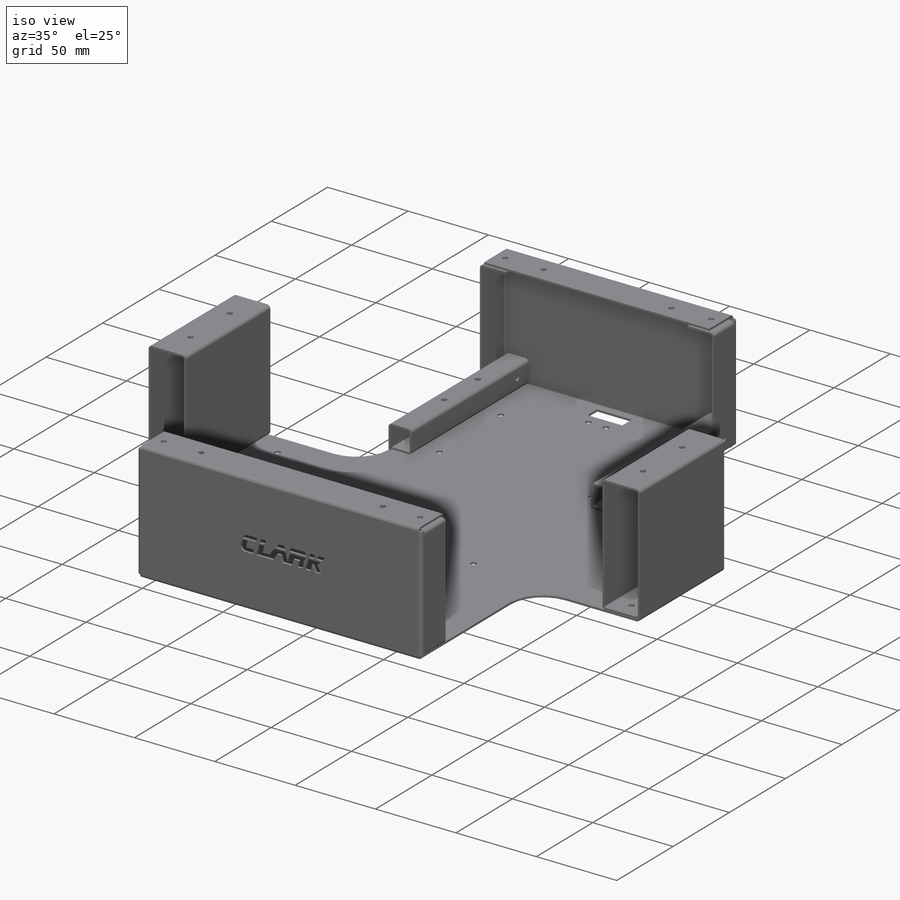
[diagram: iso view]
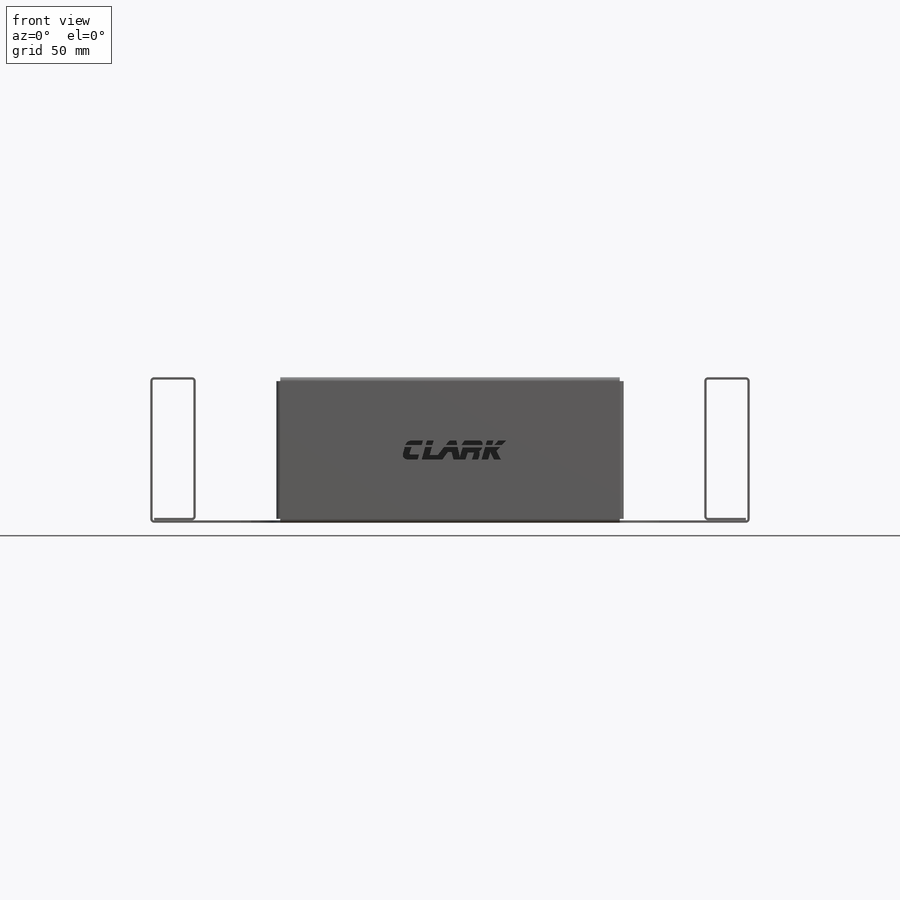
[diagram: front view]
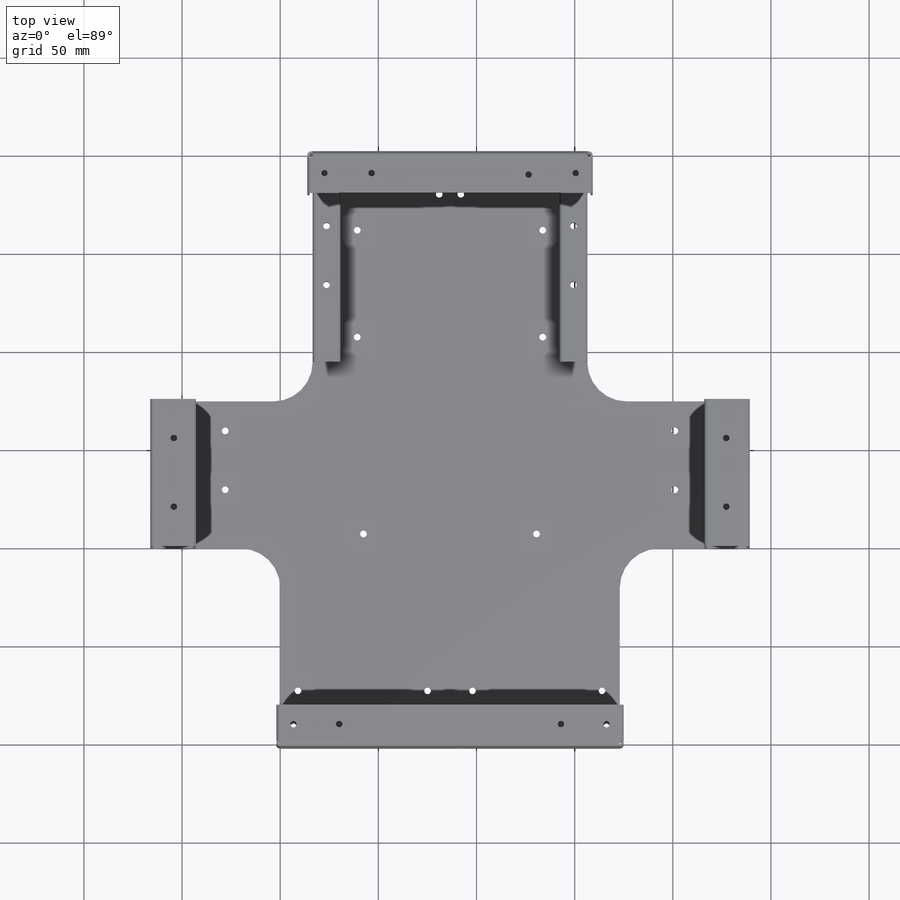
[diagram: top view]
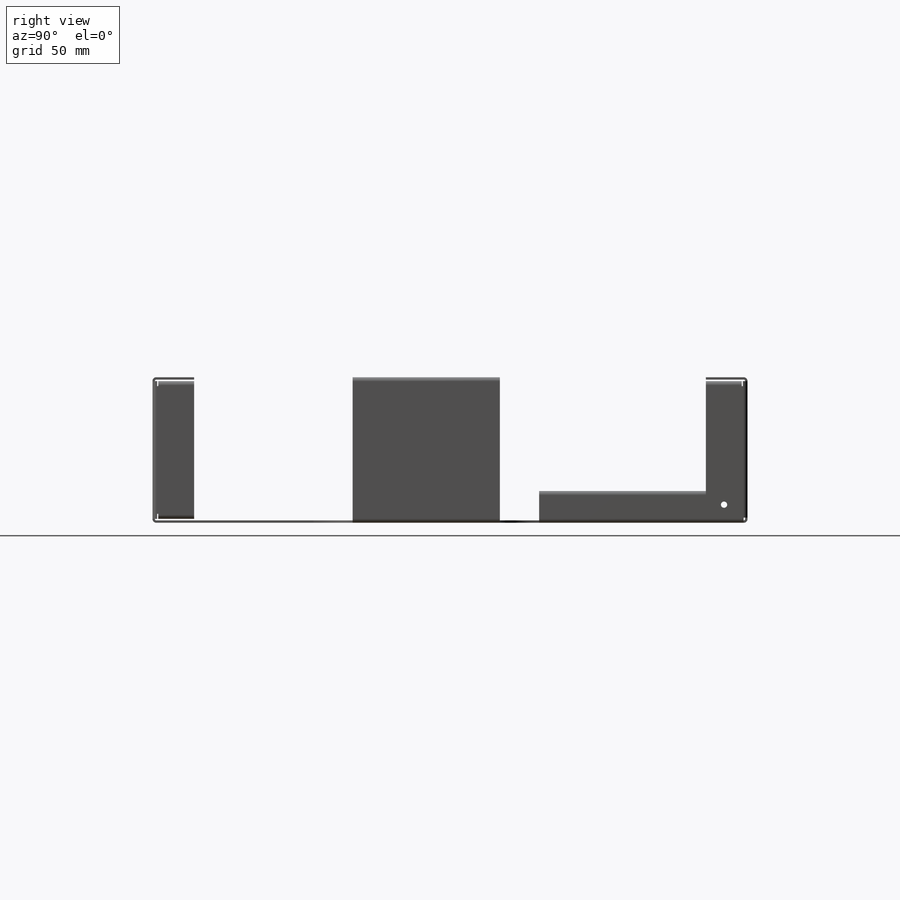
[diagram: right view]
SOLIDWORKS PART (.sldprt)
format: sldprt  version: not decoded by parser v0  size: 4,408,832 bytes
history: native  units: mm
features: sketch x204, cut_extrude x73, sheet_metal_op x61, fillet x31, mirror x15, hole x12, material x1, plane x1 + 854 further entries (+12 scaffold rows collapsed; 60 parser-record rows omitted)
feature tree (1324):
  scaffold x12  (default folders/planes/origin — collapsed)
  material  "Plain Carbon Steel"
  sketch  "Sketch1"  dims[c1.D1=~84.130859mm c1.D2=~59.610307mm c2.D1=300.0mm c2.D2=173.0mm c2.D3=0.0mm c2.D4=65.0mm c2.D5=125.0mm c2.D6=0.0mm c2.D7=125.0mm c2.D8=65.0mm c2.D9=~114.531586mm c3.D3=100.0mm c3.D6=100.0mm c3.D9=140.0mm c3.D1=300.0mm c4.D1=0.762mm c4.D2=0.389 c4.D3=1.1938mm c4.D6=500.0mm]
  sheet_metal_op  "Base-Flange1"
  plane  "Mid Width Plane"
  hole  "M3 Clearance Hole2"  Diameter=3.4mm Depth=1.27mm
  sketch  "Sketch29"
  sketch  "Sketch28"  dims[hole-wizard template sketch: 47 standard entries collapsed; hole parameters kept: c15.Hole Depth=1.27mm c15.D3=~14.816244mm c15.Drill Angle=118.0deg]
  mirror  "Mirror3"
  fillet  "Fillet1"  Radius=20mm
  sketch  "Sketch34"  dims[c1.D1=95.0mm c1.D2=108.0mm c1.D3=52.5mm c1.D4=~138.542328mm c1.D5=~138.542328mm c2.D4=151.5mm]
  sketch  "Sketch35"  dims[c1.D1=122.0mm c1.D2=13.0mm c1.D3=0.0mm c1.D4=13.0mm c2.D4=~83.917663deg c3.D4=7.0mm]
  sketch  "Sketch46"  dims[c1.D1=0.762mm c1.D4=90.0deg c1.D5=1.0 c1.D8=0.605mm c1.D9=0.605mm c2.D1=0.762mm c2.D2=500.0mm c2.D3=0.0mm c2.D6=10.0mm c2.D7=71.0mm]
  sketch  "Sketch49"
  fillet  "EdgeBend2"  Radius=0.762mm
  mirror  "Side Wall Mirror"
  fillet  "MirrorBend1"  Radius=0.762mm
  sketch  "Sketch52"
  fillet  "EdgeBend3"  Radius=0.762mm
  cut_extrude  "H-Bridge Hole"  Depth=10mm
  sketch  "Sketch55"
  fillet  "EdgeBend4"  Radius=0.762mm
  hole  "M3 Clearance Hole4"  Diameter=3.4mm Depth=1.27mm
  sketch  "Sketch59"  dims[D1=108.0mm D2=7.0mm]
  sketch  "Sketch58"  dims[hole-wizard template sketch: 47 standard entries collapsed; hole parameters kept: c15.Hole Depth=1.27mm c15.D3=~14.816244mm c15.Drill Angle=118.0deg]
  sketch  "Sketch61"  dims[D1=4.0mm]
  cut_extrude  "Cut-Extrude2"  Depth=10mm
  mirror  "Mirror5"
  sketch  "Sketch62"  dims[D1=60.0mm D2=8.5mm D3=21.5mm D4=0.0mm D5=3.5mm]
  cut_extrude  "QRD Clearance"  Depth=10mm
  sketch  "Steering Box Allocation"  dims[c1.D1=150.0mm c1.D2=35.25mm c1.D3=70.0mm c1.D4=7.0mm c1.D5=39.75mm c2.D2=0.0mm]
  hole  "QRD Holes"  Diameter=3.4mm Depth=1.27mm
  sketch  "Sketch75"
  sketch  "Sketch74"  dims[hole-wizard template sketch: 47 standard entries collapsed; hole parameters kept: c15.Hole Depth=1.27mm c15.D3=~14.816244mm c15.Drill Angle=118.0deg]
  sketch  "Sketch80"
  fillet  "EdgeBend5"  Radius=0.762mm
  hole  "Tap Drill for M4x0.7 Tap3"  Diameter=3.3mm Depth=1.209mm
  sketch  "Sketch82"  dims[D1=20.0mm D2=20.0mm D3=10.0mm D4=10.0mm]
  sketch  "Sketch81"  dims[hole-wizard template sketch: 47 standard entries collapsed; hole parameters kept: c15.Hole Depth=1.209mm c15.D3=~14.816244mm c15.Drill Angle=118.0deg]
  mirror  "Mirror6"
  fillet  "MirrorBend2"  Radius=0.762mm
  sketch  "Sketch85"
  fillet  "EdgeBend6"  Radius=0.762mm
  sketch  "Sketch90"
  fillet  "EdgeBend7"  Radius=0.762mm
  sketch  "Sketch93"
  fillet  "EdgeBend10"  Radius=0.762mm
  mirror  "Mirror7"
  fillet  "MirrorBend3"  Radius=0.762mm
  fillet  "MirrorBend4"  Radius=0.762mm
  sketch  "Sketch104"
  fillet  "EdgeBend11"  Radius=0.762mm
  hole  "Tap Drill for M4x0.7 Tap1"  Diameter=3.3mm Depth=1.209mm
  sketch  "Sketch108"  dims[c1.D1=30.0mm c1.D2=30.0mm c1.D3=~30.000072mm c2.D2=10.0mm c2.D3=10.0mm]
  sketch  "Sketch107"  dims[hole-wizard template sketch: 47 standard entries collapsed; hole parameters kept: c15.Hole Depth=1.209mm c15.D3=~14.816244mm c15.Drill Angle=118.0deg]
  hole  "Tap Drill for M4x0.7 Tap2"  Diameter=3.3mm Depth=1.209mm
  sketch  "Sketch110"  dims[D1=30.0mm D2=30.0mm D3=10.0mm D4=10.0mm]
  sketch  "Sketch109"  dims[hole-wizard template sketch: 47 standard entries collapsed; hole parameters kept: c15.Hole Depth=1.209mm c15.D3=~14.816244mm c15.Drill Angle=118.0deg]
  sketch  "Sketch111"  dims[D1=0.0mm D2=0.0mm D3=0.0mm D4=25.0mm D5=10.0mm D6=75.0mm D7=10.0mm D8=10.0mm D9=10.0mm D10=10.0mm D11=60.0mm]
  cut_extrude  "Cut-Extrude5"  Depth=10mm
  sketch  "Sketch112"  dims[c1.D4=5.0mm c1.D1=0.0mm c1.D2=10.0mm c1.D3=25.0mm c2.D4=60.0mm c2.D3=15.0mm]
  cut_extrude  "Cut-Extrude6"  Depth=10mm
  sketch  "Sketch113"  dims[c1.D4=4.0mm c1.D1=0.0mm c1.D2=20.0mm c1.D3=10.0mm c2.D4=120.0mm]
  cut_extrude  "Cut-Extrude7"  Depth=10mm
  sketch  "Sketch114"  dims[c1.D1=4.0mm c1.D2=10.0mm c1.D3=10.0mm c1.D4=4.0mm c2.D1=4.0mm c2.D4=55.0mm]
  sketch  "Sketch115"  dims[D1=4.0mm D2=14.0mm D3=10.0mm D4=10.0mm]
  cut_extrude  "Cut-Extrude8"  Depth=10mm
  cut_extrude  "Cut-Extrude9"  Depth=10mm
  sketch  "Sketch116"  dims[c1.D1=12.0mm c1.D2=54.0mm c1.D3=6.8mm c1.D4=6.8mm c1.D5=3.0mm c1.D6=4.0mm c1.D7=4.0mm c2.D1=19.0mm c2.D8=~0.133404mm c2.D9=~21.343404mm c2.D2=~21.343404mm c3.D1=25.0mm c3.D2=22.0mm]
  cut_extrude  "Cut-Extrude10"  Depth=10mm
  mirror  "Mirror9"
  sketch  "Sketch73"  dims[D1=50.0mm]
  hole  "M3 Clearance Hole9"  Diameter=3.4mm Depth=2.51mm
  sketch  "Sketch120"  dims[D1=10.0mm D2=10.0mm D3=10.0mm D4=10.0mm]
  sketch  "Sketch119"  dims[hole-wizard template sketch: 60 standard entries collapsed; hole parameters kept: c18.Thru Hole Depth=2.51mm]
  mirror  "Mirror10"
  sketch  "Sketch123"
  fillet  "EdgeBend12"  Radius=0.762mm
  sketch  "Sketch126"
  fillet  "EdgeBend13"  Radius=0.762mm
  sketch  "Sketch129"
  fillet  "EdgeBend14"  Radius=0.762mm
  sketch  "Sketch177"
  fillet  "EdgeBend25"  Radius=0.762mm
  hole  "M3 (V Bracket)"  Diameter=3.4mm Depth=28.71mm
  sketch  "Sketch131"  dims[D1=30.0mm D2=15.0mm D3=9.0mm D4=9.0mm]
  sketch  "Sketch130"  dims[hole-wizard template sketch: 60 standard entries collapsed; hole parameters kept: c18.Thru Hole Depth=28.71mm]
  mirror  "Copy of Front Wheel Support"
  fillet  "MirrorBend5"  Radius=0.762mm
  fillet  "MirrorBend6"  Radius=0.762mm
  fillet  "MirrorBend7"  Radius=0.762mm
  fillet  "MirrorBend19"  Radius=0.762mm
  mirror  "Copy of M3 (V Bracket)"
  hole  "M3 (Steering Box)"  Diameter=3.4mm Depth=3mm
  sketch  "Sketch133"
  sketch  "Sketch132"  dims[hole-wizard template sketch: 47 standard entries collapsed; hole parameters kept: c15.Hole Depth=3.0mm c15.D3=~14.816244mm c15.Drill Angle=118.0deg]
  hole  "M3 Clearance Hole10"  Diameter=3.4mm Depth=16.21mm
  sketch  "Sketch134"
  sketch  "Sketch135"  dims[Thru Hole Dia.=3.4mm Thru Hole Depth=16.21mm]
  hole  "M3 Clearance Hole11"  Diameter=3.4mm Depth=16.21mm
  sketch  "Sketch136"
  sketch  "Sketch137"  dims[Thru Hole Dia.=3.4mm Thru Hole Depth=16.21mm]
  sketch  "Sketch138"  dims[D1=54.0mm D2=95.0mm]
  sketch  "Sketch139"  dims[D1=54.0mm D2=95.0mm]
  sketch  "Sketch142"
  fillet  "EdgeBend15"  Radius=0.762mm
  sketch  "Sketch153"  dims[D1=15.0mm D2=1.0mm]
  fillet  "EdgeBend18"  Radius=0.762mm
  sketch  "Sketch156"  dims[D1=15.0mm D2=1.0mm]
  fillet  "EdgeBend19"  Radius=0.762mm
  mirror  "Mirror15"
  fillet  "MirrorBend8"  Radius=0.762mm
  mirror  "Mirror16"
  fillet  "MirrorBend9"  Radius=0.762mm
  fillet  "MirrorBend10"  Radius=0.762mm
  sketch  "Sketch157"  dims[c1.D3=~3.561498mm c1.D1=7.5mm c1.D2=~7.747606mm c2.D2=90.0deg c3.D2=10.0mm c3.D1=10.0mm c4.D2=7.5mm]
  cut_extrude  "Cut-Extrude12"  Depth=10mm
  sketch  "Sketch158"  dims[c1.D3=~2.848931mm c1.D1=7.5mm c1.D2=10.0mm c2.D1=10.0mm c2.D2=7.5mm]
  cut_extrude  "Cut-Extrude13"  Depth=10mm
  mirror  "Mirror17"
  sketch  "Sketch164"
  fillet  "EdgeBend23"  Radius=0.762mm
  sketch  "Sketch171"  dims[D1=15.0mm D2=1.0mm]
  fillet  "EdgeBend24"  Radius=0.762mm
  sketch  "Sketch172"  dims[c1.D3=~4.380345mm c1.D1=7.5mm c1.D2=~14.134178mm c2.D2=90.0deg c3.D2=10.0mm c3.D1=10.0mm c4.D2=7.5mm]
  cut_extrude  "Cut-Extrude15"  Depth=10mm
  sketch  "Sketch174"
  mirror  "Front Wall Side Mirror"
  fillet  "MirrorBend16"  Radius=0.762mm
  sketch  "Sketch178"
  sketch  "Sketch179"  dims[D3=~6.444361mm D1=5.0mm D2=10.0mm]
  cut_extrude  "Front Wall Rivet Hole"  [1 undecoded]
  mirror  "Front Wall Rivet Hole Mirror"
  fillet  "MirrorBend18"  Radius=0.762mm
  hole  "H-Bridge M3 Clearance"  Diameter=3.4mm Depth=2.51mm
  sketch  "Sketch194"  dims[D1=15.0mm D2=30.0mm D3=30.0mm]
  sketch  "Sketch193"  dims[hole-wizard template sketch: 47 standard entries collapsed; hole parameters kept: c15.Hole Depth=2.51mm c15.D3=~14.816244mm c15.Drill Angle=118.0deg]
  mirror  "H-Bridge M3 Mirror"
  sketch  "Sketch195"  dims[D1=62.0mm D2=5.0mm]
  cut_extrude  "Cut-Extrude16"  [1 undecoded]
  sketch  "Bend-Lines1"
  sketch  "Bounding-Box1"
  sheet_metal_op  "Sheet-Metal(1)"
  "Flat-Pattern(1)"
  sketch  "Bend-Lines2"
  sketch  "Bounding-Box2"
  parser-record x60  (decoder bookkeeping rows leaked as tree rows — omitted from the tree; the rows remain in map.json)
  cut_extrude  "Sheet-Metal(23)"  Depth=0.762mm
  sheet_metal_op  "Flat-Pattern(1)"
  sketch  "Bend-Lines2"
  sketch  "Bounding-Box2"
  cut_extrude  "Sheet-Metal(24)"  Depth=0.762mm
  sheet_metal_op  "Flat-Pattern(1)"
  sketch  "Bend-Lines2"
  sketch  "Bounding-Box2"
  cut_extrude  "Sheet-Metal(26)"  Depth=0.762mm
  sheet_metal_op  "Flat-Pattern(1)"
  sketch  "Bend-Lines2"
  sketch  "Bounding-Box2"
  cut_extrude  "Sheet-Metal(27)"  Depth=0.762mm
  sheet_metal_op  "Flat-Pattern(1)"
  sketch  "Bend-Lines2"
  sketch  "Bounding-Box2"
  "Flatten-<EdgeBend1>1"
  "Flatten-<EdgeBend2>1"
  cut_extrude  "Sheet-Metal(28)"  Depth=0.762mm
  sheet_metal_op  "Flat-Pattern(1)"
  sketch  "Bend-Lines2"
  sketch  "Bounding-Box2"
  "Flatten-<EdgeBend1>1"
  "Flatten-<EdgeBend2>1"
  "Flatten-<MirrorBend1>1"
  cut_extrude  "Sheet-Metal(29)"  Depth=0.762mm
  sheet_metal_op  "Flat-Pattern(1)"
  sketch  "Bend-Lines2"
  sketch  "Bounding-Box2"
  "Flatten-<EdgeBend1>1"
  "Flatten-<EdgeBend2>1"
  "Flatten-<MirrorBend1>1"
  "Flatten-<EdgeBend3>1"
  cut_extrude  "Sheet-Metal(30)"  Depth=0.762mm
  sheet_metal_op  "Flat-Pattern(1)"
  sketch  "Bend-Lines2"
  sketch  "Bounding-Box2"
  "Flatten-<EdgeBend1>1"
  "Flatten-<EdgeBend2>1"
  "Flatten-<MirrorBend1>1"
  "Flatten-<EdgeBend3>1"
  cut_extrude  "Sheet-Metal(31)"  Depth=0.762mm
  sheet_metal_op  "Flat-Pattern(1)"
  sketch  "Bend-Lines2"
  sketch  "Bounding-Box2"
  "Flatten-<EdgeBend1>1"
  "Flatten-<EdgeBend2>1"
  "Flatten-<MirrorBend1>1"
  "Flatten-<EdgeBend3>1"
  "Flatten-<EdgeBend4>1"
  cut_extrude  "Sheet-Metal(33)"  Depth=0.762mm
  sheet_metal_op  "Flat-Pattern(1)"
  sketch  "Bend-Lines2"
  sketch  "Bounding-Box2"
  "Flatten-<EdgeBend1>1"
  "Flatten-<EdgeBend2>1"
  "Flatten-<MirrorBend1>1"
  "Flatten-<EdgeBend3>1"
  "Flatten-<EdgeBend4>1"
  cut_extrude  "Sheet-Metal(34)"  Depth=0.762mm
  sheet_metal_op  "Flat-Pattern(1)"
  sketch  "Bend-Lines2"
  sketch  "Bounding-Box2"
  "Flatten-<EdgeBend1>1"
  "Flatten-<EdgeBend2>1"
  "Flatten-<MirrorBend1>1"
  "Flatten-<EdgeBend3>1"
  "Flatten-<EdgeBend4>1"
  cut_extrude  "Sheet-Metal(35)"  Depth=0.762mm
  sheet_metal_op  "Flat-Pattern(1)"
  sketch  "Bend-Lines2"
  sketch  "Bounding-Box2"
  "Flatten-<EdgeBend1>1"
  "Flatten-<EdgeBend2>1"
  "Flatten-<MirrorBend1>1"
  "Flatten-<EdgeBend3>1"
  "Flatten-<EdgeBend4>1"
  cut_extrude  "Sheet-Metal(36)"  Depth=0.762mm
  sheet_metal_op  "Flat-Pattern(1)"
  sketch  "Bend-Lines2"
  sketch  "Bounding-Box2"
  "Flatten-<EdgeBend1>1"
  "Flatten-<EdgeBend2>1"
  "Flatten-<MirrorBend1>1"
  "Flatten-<EdgeBend3>1"
  cut_extrude  "Sheet-Metal(39)"  Depth=0.762mm
  sheet_metal_op  "Flat-Pattern(1)"
  sketch  "Bend-Lines2"
  sketch  "Bounding-Box2"
  "Flatten-<EdgeBend1>1"
  "Flatten-<EdgeBend2>1"
  "Flatten-<MirrorBend1>1"
  "Flatten-<EdgeBend3>1"
  cut_extrude  "Sheet-Metal(40)"  Depth=0.762mm
  sheet_metal_op  "Flat-Pattern(1)"
  sketch  "Bend-Lines2"
  sketch  "Bounding-Box2"
  "Flatten-<EdgeBend1>1"
  "Flatten-<EdgeBend2>1"
  "Flatten-<MirrorBend1>1"
  "Flatten-<EdgeBend3>1"
  "Flatten-<EdgeBend5>1"
  cut_extrude  "Sheet-Metal(41)"  Depth=0.762mm
  sheet_metal_op  "Flat-Pattern(1)"
  sketch  "Bend-Lines2"
  sketch  "Bounding-Box2"
  "Flatten-<EdgeBend1>1"
  "Flatten-<EdgeBend2>1"
  "Flatten-<MirrorBend1>1"
  "Flatten-<EdgeBend3>1"
  "Flatten-<EdgeBend5>1"
  cut_extrude  "Sheet-Metal(42)"  Depth=0.762mm
  sheet_metal_op  "Flat-Pattern(1)"
  sketch  "Bend-Lines2"
  sketch  "Bounding-Box2"
  "Flatten-<EdgeBend1>1"
  "Flatten-<EdgeBend2>1"
  "Flatten-<MirrorBend1>1"
  "Flatten-<EdgeBend3>1"
  "Flatten-<EdgeBend5>1"
  "Flatten-<MirrorBend2>1"
  cut_extrude  "Sheet-Metal(43)"  Depth=0.762mm
  sheet_metal_op  "Flat-Pattern(1)"
  sketch  "Bend-Lines2"
  sketch  "Bounding-Box2"
  "Flatten-<EdgeBend1>1"
  "Flatten-<EdgeBend2>1"
  "Flatten-<MirrorBend1>1"
  "Flatten-<EdgeBend3>1"
  "Flatten-<EdgeBend6>1"
  "Flatten-<EdgeBend5>1"
  "Flatten-<MirrorBend2>1"
  cut_extrude  "Sheet-Metal(44)"  Depth=0.762mm
  sheet_metal_op  "Flat-Pattern(1)"
  sketch  "Bend-Lines2"
  sketch  "Bounding-Box2"
  "Flatten-<EdgeBend1>1"
  "Flatten-<EdgeBend2>1"
  "Flatten-<MirrorBend1>1"
  "Flatten-<EdgeBend3>1"
  "Flatten-<EdgeBend5>1"
  "Flatten-<MirrorBend2>1"
  "Flatten-<EdgeBend6>1"
  "Flatten-<EdgeBend7>1"
  cut_extrude  "Sheet-Metal(45)"  Depth=0.762mm
  sheet_metal_op  "Flat-Pattern(1)"
  sketch  "Bend-Lines2"
  sketch  "Bounding-Box2"
  "Flatten-<EdgeBend1>1"
  "Flatten-<EdgeBend2>1"
  "Flatten-<MirrorBend1>1"
  "Flatten-<EdgeBend3>1"
  "Flatten-<EdgeBend5>1"
  "Flatten-<MirrorBend2>1"
  "Flatten-<EdgeBend6>1"
  "Flatten-<EdgeBend7>1"
  "Flatten-<EdgeBend10>1"
  cut_extrude  "Sheet-Metal(47)"  Depth=0.762mm
  sheet_metal_op  "Flat-Pattern(1)"
  sketch  "Bend-Lines2"
  sketch  "Bounding-Box2"
  "Flatten-<EdgeBend1>1"
  "Flatten-<EdgeBend2>1"
  "Flatten-<MirrorBend1>1"
  "Flatten-<EdgeBend3>1"
  "Flatten-<EdgeBend5>1"
  "Flatten-<MirrorBend2>1"
  "Flatten-<EdgeBend6>1"
  "Flatten-<EdgeBend7>1"
  "Flatten-<EdgeBend10>2"
  "Flatten-<MirrorBend3>1"
  "Flatten-<MirrorBend4>1"
  cut_extrude  "Sheet-Metal(51)"  Depth=0.762mm
  sheet_metal_op  "Flat-Pattern(1)"
  sketch  "Bend-Lines2"
  sketch  "Bounding-Box2"
  "Flatten-<EdgeBend1>1"
  "Flatten-<EdgeBend2>1"
  "Flatten-<MirrorBend1>1"
  "Flatten-<EdgeBend3>1"
  "Flatten-<EdgeBend6>1"
  "Flatten-<EdgeBend11>1"
  "Flatten-<EdgeBend5>1"
  "Flatten-<MirrorBend2>1"
  "Flatten-<EdgeBend7>1"
  "Flatten-<EdgeBend10>2"
  "Flatten-<MirrorBend3>1"
  "Flatten-<MirrorBend4>1"
  cut_extrude  "Sheet-Metal(52)"  Depth=0.762mm
  sheet_metal_op  "Flat-Pattern(1)"
  sketch  "Bend-Lines2"
  sketch  "Bounding-Box2"
  "Flatten-<EdgeBend1>1"
  "Flatten-<EdgeBend2>1"
  "Flatten-<MirrorBend1>1"
  "Flatten-<EdgeBend3>1"
  "Flatten-<EdgeBend6>1"
  "Flatten-<EdgeBend11>1"
  "Flatten-<EdgeBend5>1"
  "Flatten-<MirrorBend2>1"
  "Flatten-<EdgeBend7>1"
  "Flatten-<EdgeBend10>2"
  "Flatten-<MirrorBend3>1"
  "Flatten-<MirrorBend4>1"
  cut_extrude  "Sheet-Metal(53)"  Depth=0.762mm
  sheet_metal_op  "Flat-Pattern(1)"
  sketch  "Bend-Lines2"
  sketch  "Bounding-Box2"
  "Flatten-<EdgeBend1>1"
  "Flatten-<EdgeBend2>1"
  "Flatten-<MirrorBend1>1"
  "Flatten-<EdgeBend3>1"
  "Flatten-<EdgeBend6>1"
  "Flatten-<EdgeBend11>1"
  "Flatten-<EdgeBend5>1"
  "Flatten-<MirrorBend2>1"
  "Flatten-<EdgeBend7>1"
  "Flatten-<EdgeBend10>2"
  "Flatten-<MirrorBend3>1"
  "Flatten-<MirrorBend4>1"
  cut_extrude  "Sheet-Metal(55)"  Depth=0.762mm
  sheet_metal_op  "Flat-Pattern(1)"
  sketch  "Bend-Lines2"
  sketch  "Bounding-Box2"
  "Flatten-<EdgeBend1>1"
  "Flatten-<EdgeBend2>1"
  "Flatten-<MirrorBend1>1"
  "Flatten-<EdgeBend3>1"
  "Flatten-<EdgeBend4>1"
  "Flatten-<EdgeBend5>1"
  "Flatten-<MirrorBend2>1"
  "Flatten-<EdgeBend6>1"
  "Flatten-<EdgeBend7>1"
  "Flatten-<EdgeBend10>2"
  "Flatten-<EdgeBend11>1"
  cut_extrude  "Sheet-Metal(56)"  Depth=0.762mm
  sheet_metal_op  "Flat-Pattern(1)"
  sketch  "Bend-Lines2"
  sketch  "Bounding-Box2"
  "Flatten-<EdgeBend1>1"
  "Flatten-<EdgeBend2>1"
  "Flatten-<MirrorBend1>1"
  "Flatten-<EdgeBend3>1"
  "Flatten-<EdgeBend4>1"
  "Flatten-<EdgeBend5>1"
  "Flatten-<MirrorBend2>1"
  "Flatten-<EdgeBend6>1"
  "Flatten-<EdgeBend7>1"
  "Flatten-<EdgeBend10>2"
  "Flatten-<EdgeBend11>1"
  cut_extrude  "Sheet-Metal(57)"  Depth=0.762mm
  sheet_metal_op  "Flat-Pattern(1)"
  sketch  "Bend-Lines2"
  sketch  "Bounding-Box2"
  "Flatten-<EdgeBend1>1"
  "Flatten-<EdgeBend2>1"
  "Flatten-<MirrorBend1>1"
  "Flatten-<EdgeBend3>1"
  "Flatten-<EdgeBend4>1"
  "Flatten-<EdgeBend5>1"
  "Flatten-<MirrorBend2>1"
  "Flatten-<EdgeBend6>1"
  "Flatten-<EdgeBend7>1"
  "Flatten-<EdgeBend10>2"
  "Flatten-<EdgeBend11>1"
  cut_extrude  "Sheet-Metal(58)"  Depth=0.762mm
  sheet_metal_op  "Flat-Pattern(1)"
  sketch  "Bend-Lines2"
  sketch  "Bounding-Box2"
  "Flatten-<EdgeBend1>1"
  "Flatten-<EdgeBend2>1"
  "Flatten-<MirrorBend1>1"
  "Flatten-<EdgeBend3>1"
  "Flatten-<EdgeBend4>1"
  "Flatten-<EdgeBend5>1"
  "Flatten-<MirrorBend2>1"
  "Flatten-<EdgeBend6>1"
  "Flatten-<EdgeBend7>1"
  "Flatten-<EdgeBend10>2"
  "Flatten-<EdgeBend11>1"
  cut_extrude  "Sheet-Metal(59)"  Depth=0.762mm
  sheet_metal_op  "Flat-Pattern(1)"
  sketch  "Bend-Lines2"
  sketch  "Bounding-Box2"
  "Flatten-<EdgeBend1>1"
  "Flatten-<EdgeBend2>1"
  "Flatten-<MirrorBend1>1"
  "Flatten-<EdgeBend3>1"
  "Flatten-<EdgeBend4>1"
  "Flatten-<EdgeBend5>1"
  "Flatten-<MirrorBend2>1"
  "Flatten-<EdgeBend6>1"
  "Flatten-<EdgeBend7>1"
  "Flatten-<EdgeBend10>2"
  "Flatten-<EdgeBend11>1"
  cut_extrude  "Sheet-Metal(60)"  Depth=0.762mm
  sheet_metal_op  "Flat-Pattern(1)"
  sketch  "Bend-Lines2"
  sketch  "Bounding-Box2"
  "Flatten-<EdgeBend1>1"
  "Flatten-<EdgeBend2>1"
  "Flatten-<MirrorBend1>1"
  "Flatten-<EdgeBend3>1"
  "Flatten-<EdgeBend4>1"
  "Flatten-<EdgeBend5>1"
  "Flatten-<MirrorBend2>1"
  "Flatten-<EdgeBend6>1"
  "Flatten-<EdgeBend7>1"
  "Flatten-<EdgeBend10>2"
  "Flatten-<EdgeBend11>1"
  cut_extrude  "Sheet-Metal(61)"  Depth=0.762mm
  sheet_metal_op  "Flat-Pattern(1)"
  sketch  "Bend-Lines2"
  sketch  "Bounding-Box2"
  "Flatten-<EdgeBend1>1"
  "Flatten-<EdgeBend2>1"
  "Flatten-<MirrorBend1>1"
  "Flatten-<EdgeBend3>1"
  "Flatten-<EdgeBend4>1"
  "Flatten-<EdgeBend5>1"
  "Flatten-<MirrorBend2>1"
  "Flatten-<EdgeBend6>1"
  "Flatten-<EdgeBend7>1"
  "Flatten-<EdgeBend10>2"
  "Flatten-<EdgeBend11>1"
  cut_extrude  "Sheet-Metal(63)"  Depth=0.762mm
  sheet_metal_op  "Flat-Pattern(1)"
  sketch  "Bend-Lines2"
  sketch  "Bounding-Box2"
  "Flatten-<EdgeBend1>1"
  "Flatten-<EdgeBend2>1"
  "Flatten-<MirrorBend1>1"
  "Flatten-<EdgeBend3>1"
  "Flatten-<EdgeBend5>1"
  "Flatten-<MirrorBend2>1"
  "Flatten-<EdgeBend6>1"
  "Flatten-<EdgeBend7>1"
  "Flatten-<EdgeBend10>2"
  "Flatten-<EdgeBend11>1"
  "Flatten-<MirrorBend3>1"
  "Flatten-<MirrorBend4>1"
  cut_extrude  "Sheet-Metal(64)"  Depth=0.762mm
  sheet_metal_op  "Flat-Pattern(1)"
  sketch  "Bend-Lines2"
  sketch  "Bounding-Box2"
  "Flatten-<EdgeBend1>1"
  "Flatten-<EdgeBend2>1"
  "Flatten-<MirrorBend1>1"
  "Flatten-<EdgeBend3>1"
  "Flatten-<EdgeBend5>1"
  "Flatten-<MirrorBend2>1"
  "Flatten-<EdgeBend6>1"
  "Flatten-<EdgeBend7>1"
  "Flatten-<EdgeBend10>2"
  "Flatten-<EdgeBend11>1"
  "Flatten-<MirrorBend3>1"
  "Flatten-<MirrorBend4>1"
  cut_extrude  "Sheet-Metal(65)"  Depth=0.762mm
  sheet_metal_op  "Flat-Pattern(1)"
  sketch  "Bend-Lines2"
  sketch  "Bounding-Box2"
  "Flatten-<EdgeBend1>1"
  "Flatten-<EdgeBend2>1"
  "Flatten-<MirrorBend1>1"
  "Flatten-<EdgeBend3>1"
  "Flatten-<EdgeBend6>1"
  "Flatten-<EdgeBend11>1"
  "Flatten-<EdgeBend12>1"
  "Flatten-<EdgeBend10>2"
  "Flatten-<EdgeBend7>1"
  "Flatten-<MirrorBend2>1"
  "Flatten-<EdgeBend5>1"
  "Flatten-<MirrorBend3>1"
  "Flatten-<MirrorBend4>1"
  cut_extrude  "Sheet-Metal(66)"  Depth=0.762mm
  sheet_metal_op  "Flat-Pattern(1)"
  sketch  "Bend-Lines2"
  sketch  "Bounding-Box2"
  "Flatten-<EdgeBend1>1"
  "Flatten-<EdgeBend2>1"
  "Flatten-<MirrorBend1>1"
  "Flatten-<EdgeBend3>1"
  "Flatten-<EdgeBend6>1"
  "Flatten-<EdgeBend11>1"
  "Flatten-<EdgeBend12>1"
  "Flatten-<EdgeBend13>1"
  "Flatten-<EdgeBend10>2"
  "Flatten-<EdgeBend7>1"
  "Flatten-<MirrorBend2>1"
  "Flatten-<EdgeBend5>1"
  "Flatten-<MirrorBend3>1"
  "Flatten-<MirrorBend4>1"
  cut_extrude  "Sheet-Metal(67)"  Depth=0.762mm
  sheet_metal_op  "Flat-Pattern(1)"
  sketch  "Bend-Lines2"
  sketch  "Bounding-Box2"
  "Flatten-<EdgeBend1>1"
  "Flatten-<EdgeBend2>1"
  "Flatten-<MirrorBend1>1"
  "Flatten-<EdgeBend3>1"
  "Flatten-<EdgeBend6>1"
  "Flatten-<EdgeBend11>1"
  "Flatten-<EdgeBend12>1"
  "Flatten-<EdgeBend13>1"
  "Flatten-<EdgeBend14>1"
  "Flatten-<EdgeBend10>2"
  "Flatten-<EdgeBend7>1"
  "Flatten-<MirrorBend2>1"
  "Flatten-<EdgeBend5>1"
  "Flatten-<MirrorBend3>1"
  "Flatten-<MirrorBend4>1"
  cut_extrude  "Sheet-Metal(68)"  Depth=0.762mm
  sheet_metal_op  "Flat-Pattern(1)"
  sketch  "Bend-Lines2"
  sketch  "Bounding-Box2"
  "Flatten-<EdgeBend1>1"
  "Flatten-<EdgeBend2>1"
  "Flatten-<MirrorBend1>1"
  "Flatten-<EdgeBend3>1"
  "Flatten-<EdgeBend4>1"
  "Flatten-<EdgeBend5>1"
  "Flatten-<MirrorBend2>1"
  "Flatten-<EdgeBend6>1"
  "Flatten-<EdgeBend7>1"
  "Flatten-<EdgeBend10>2"
  "Flatten-<EdgeBend11>1"
  "Flatten-<EdgeBend12>1"
  "Flatten-<EdgeBend13>1"
  "Flatten-<EdgeBend14>1"
  cut_extrude  "Sheet-Metal(69)"  Depth=0.762mm
  sheet_metal_op  "Flat-Pattern(1)"
  sketch  "Bend-Lines2"
  sketch  "Bounding-Box2"
  "Flatten-<EdgeBend1>1"
  "Flatten-<EdgeBend2>1"
  "Flatten-<MirrorBend1>1"
  "Flatten-<EdgeBend3>1"
  "Flatten-<EdgeBend6>1"
  "Flatten-<EdgeBend11>1"
  "Flatten-<EdgeBend12>1"
  "Flatten-<EdgeBend13>1"
  "Flatten-<EdgeBend14>1"
  "Flatten-<MirrorBend5>1"
  "Flatten-<MirrorBend6>1"
  "Flatten-<MirrorBend7>1"
  "Flatten-<EdgeBend10>2"
  "Flatten-<EdgeBend7>1"
  "Flatten-<MirrorBend2>1"
  "Flatten-<EdgeBend5>1"
  "Flatten-<EdgeBend25>2"
  "Flatten-<MirrorBend19>1"
  "Flatten-<MirrorBend3>1"
  "Flatten-<MirrorBend4>1"
  cut_extrude  "Sheet-Metal(70)"  Depth=0.762mm
  sheet_metal_op  "Flat-Pattern(1)"
  sketch  "Bend-Lines2"
  sketch  "Bounding-Box2"
  "Flatten-<EdgeBend1>1"
  "Flatten-<EdgeBend2>1"
  "Flatten-<MirrorBend1>1"
  "Flatten-<EdgeBend3>1"
  "Flatten-<EdgeBend4>1"
  "Flatten-<EdgeBend5>1"
  "Flatten-<MirrorBend2>1"
  "Flatten-<EdgeBend6>1"
  "Flatten-<EdgeBend7>1"
  "Flatten-<EdgeBend10>2"
  "Flatten-<EdgeBend11>1"
  "Flatten-<EdgeBend12>1"
  "Flatten-<EdgeBend13>1"
  "Flatten-<EdgeBend14>1"
  "Flatten-<MirrorBend5>1"
  "Flatten-<MirrorBend6>1"
  "Flatten-<MirrorBend7>1"
  cut_extrude  "Sheet-Metal(71)"  Depth=0.762mm
  sheet_metal_op  "Flat-Pattern(1)"
  sketch  "Bend-Lines2"
  sketch  "Bounding-Box2"
  "Flatten-<EdgeBend1>1"
  "Flatten-<EdgeBend2>1"
  "Flatten-<MirrorBend1>1"
  "Flatten-<EdgeBend3>1"
  "Flatten-<EdgeBend6>1"
  "Flatten-<EdgeBend11>1"
  "Flatten-<EdgeBend12>1"
  "Flatten-<EdgeBend13>1"
  "Flatten-<EdgeBend14>1"
  "Flatten-<MirrorBend5>1"
  "Flatten-<MirrorBend6>1"
  "Flatten-<MirrorBend7>1"
  "Flatten-<EdgeBend10>2"
  "Flatten-<EdgeBend7>1"
  "Flatten-<MirrorBend2>1"
  "Flatten-<EdgeBend5>1"
  "Flatten-<EdgeBend25>3"
  "Flatten-<MirrorBend19>2"
  "Flatten-<MirrorBend3>1"
  "Flatten-<MirrorBend4>1"
  cut_extrude  "Sheet-Metal(72)"  Depth=0.762mm
  sheet_metal_op  "Flat-Pattern(1)"
  sketch  "Bend-Lines2"
  sketch  "Bounding-Box2"
  "Flatten-<EdgeBend1>1"
  "Flatten-<EdgeBend2>1"
  "Flatten-<MirrorBend1>1"
  "Flatten-<EdgeBend3>1"
  "Flatten-<EdgeBend6>1"
  "Flatten-<EdgeBend11>1"
  "Flatten-<EdgeBend12>1"
  "Flatten-<EdgeBend13>1"
  "Flatten-<EdgeBend14>1"
  "Flatten-<MirrorBend5>1"
  "Flatten-<MirrorBend6>1"
  "Flatten-<MirrorBend7>1"
  "Flatten-<EdgeBend10>2"
  "Flatten-<EdgeBend7>1"
  "Flatten-<MirrorBend2>1"
  "Flatten-<EdgeBend5>1"
  "Flatten-<EdgeBend25>4"
  "Flatten-<MirrorBend19>3"
  "Flatten-<MirrorBend3>1"
  "Flatten-<MirrorBend4>1"
  cut_extrude  "Sheet-Metal(73)"  Depth=0.762mm
  sheet_metal_op  "Flat-Pattern(1)"
  sketch  "Bend-Lines2"
  sketch  "Bounding-Box2"
  "Flatten-<EdgeBend1>1"
  "Flatten-<EdgeBend2>1"
  "Flatten-<MirrorBend1>1"
  "Flatten-<EdgeBend3>1"
  "Flatten-<EdgeBend5>1"
  "Flatten-<MirrorBend2>1"
  "Flatten-<EdgeBend6>1"
  "Flatten-<EdgeBend7>1"
  "Flatten-<EdgeBend10>2"
  "Flatten-<EdgeBend11>1"
  "Flatten-<EdgeBend12>1"
  "Flatten-<EdgeBend13>1"
  "Flatten-<EdgeBend14>1"
  "Flatten-<MirrorBend5>1"
  "Flatten-<MirrorBend6>1"
  "Flatten-<MirrorBend7>1"
  "Flatten-<EdgeBend25>5"
  "Flatten-<MirrorBend19>4"
  "Flatten-<MirrorBend3>1"
  "Flatten-<MirrorBend4>1"
  sketch  "Sketch174-1"
  sketch  "Sketch178-1"
  cut_extrude  "Sheet-Metal(74)"  Depth=0.762mm
  sheet_metal_op  "Flat-Pattern(1)"
  sketch  "Bend-Lines2"
  sketch  "Bounding-Box2"
  "Flatten-<EdgeBend1>1"
  "Flatten-<EdgeBend2>1"
  "Flatten-<MirrorBend1>1"
  "Flatten-<EdgeBend3>1"
  "Flatten-<EdgeBend6>1"
  "Flatten-<EdgeBend11>1"
  "Flatten-<EdgeBend12>1"
  "Flatten-<EdgeBend13>1"
  "Flatten-<EdgeBend14>1"
  "Flatten-<MirrorBend5>1"
  "Flatten-<MirrorBend6>1"
  "Flatten-<MirrorBend7>1"
  "Flatten-<EdgeBend15>1"
  "Flatten-<EdgeBend10>2"
  "Flatten-<EdgeBend7>1"
  "Flatten-<MirrorBend2>1"
  "Flatten-<EdgeBend5>1"
  "Flatten-<EdgeBend25>6"
  "Flatten-<MirrorBend19>5"
  "Flatten-<MirrorBend3>1"
  "Flatten-<MirrorBend4>1"
  sketch  "Sketch174-2"
  sketch  "Sketch178-2"
  cut_extrude  "Sheet-Metal(77)"  Depth=0.762mm
  sheet_metal_op  "Flat-Pattern(1)"
  sketch  "Bend-Lines2"
  sketch  "Bounding-Box2"
  "Flatten-<EdgeBend1>1"
  "Flatten-<EdgeBend2>1"
  "Flatten-<MirrorBend1>1"
  "Flatten-<EdgeBend3>1"
  "Flatten-<EdgeBend6>1"
  "Flatten-<EdgeBend11>1"
  "Flatten-<EdgeBend12>1"
  "Flatten-<EdgeBend13>1"
  "Flatten-<EdgeBend14>1"
  "Flatten-<MirrorBend5>1"
  "Flatten-<MirrorBend6>1"
  "Flatten-<MirrorBend7>1"
  "Flatten-<EdgeBend15>1"
  "Flatten-<EdgeBend18>1"
  "Flatten-<EdgeBend10>2"
  "Flatten-<EdgeBend7>1"
  "Flatten-<MirrorBend2>1"
  "Flatten-<EdgeBend5>1"
  "Flatten-<EdgeBend25>7"
  "Flatten-<MirrorBend19>6"
  "Flatten-<MirrorBend3>1"
  "Flatten-<MirrorBend4>1"
  sketch  "Sketch174-3"
  sketch  "Sketch178-3"
  cut_extrude  "Sheet-Metal(78)"  Depth=0.762mm
  sheet_metal_op  "Flat-Pattern(1)"
  sketch  "Bend-Lines2"
  sketch  "Bounding-Box2"
  "Flatten-<EdgeBend1>1"
  "Flatten-<EdgeBend2>1"
  "Flatten-<MirrorBend1>1"
  "Flatten-<EdgeBend3>1"
  "Flatten-<EdgeBend6>1"
  "Flatten-<EdgeBend11>1"
  "Flatten-<EdgeBend12>1"
  "Flatten-<EdgeBend13>1"
  "Flatten-<EdgeBend14>1"
  "Flatten-<MirrorBend5>1"
  "Flatten-<MirrorBend6>1"
  "Flatten-<MirrorBend7>1"
  "Flatten-<EdgeBend15>1"
  "Flatten-<EdgeBend18>1"
  "Flatten-<EdgeBend19>1"
  "Flatten-<EdgeBend10>2"
  "Flatten-<EdgeBend7>1"
  "Flatten-<MirrorBend2>1"
  "Flatten-<EdgeBend5>1"
  "Flatten-<EdgeBend25>8"
  "Flatten-<MirrorBend19>7"
  "Flatten-<MirrorBend3>1"
  "Flatten-<MirrorBend4>1"
  cut_extrude  "Sheet-Metal(79)"  Depth=0.762mm
  sheet_metal_op  "Flat-Pattern(1)"
  sketch  "Bend-Lines2"
  sketch  "Bounding-Box2"
  "Flatten-<EdgeBend1>1"
  "Flatten-<EdgeBend2>1"
  "Flatten-<MirrorBend1>1"
  "Flatten-<EdgeBend3>1"
  "Flatten-<EdgeBend6>1"
  "Flatten-<EdgeBend11>1"
  "Flatten-<EdgeBend12>1"
  "Flatten-<EdgeBend13>1"
  "Flatten-<EdgeBend14>1"
  "Flatten-<MirrorBend5>1"
  "Flatten-<MirrorBend6>1"
  "Flatten-<MirrorBend7>1"
  "Flatten-<EdgeBend15>1"
  "Flatten-<EdgeBend18>1"
  "Flatten-<EdgeBend19>1"
  "Flatten-<MirrorBend8>1"
  "Flatten-<EdgeBend10>2"
  "Flatten-<EdgeBend7>1"
  "Flatten-<MirrorBend2>1"
  "Flatten-<EdgeBend5>1"
  "Flatten-<EdgeBend25>9"
  "Flatten-<MirrorBend19>8"
  "Flatten-<MirrorBend3>1"
  "Flatten-<MirrorBend4>1"
  cut_extrude  "Sheet-Metal(80)"  Depth=0.762mm
  sheet_metal_op  "Flat-Pattern(1)"
  sketch  "Bend-Lines2"
  sketch  "Bounding-Box2"
  "Flatten-<EdgeBend1>1"
  "Flatten-<EdgeBend2>1"
  "Flatten-<MirrorBend1>1"
  "Flatten-<EdgeBend3>1"
  "Flatten-<EdgeBend6>1"
  "Flatten-<EdgeBend11>1"
  "Flatten-<EdgeBend12>1"
  "Flatten-<EdgeBend13>1"
  "Flatten-<EdgeBend14>1"
  "Flatten-<MirrorBend5>1"
  "Flatten-<MirrorBend6>1"
  "Flatten-<MirrorBend7>1"
  "Flatten-<EdgeBend15>1"
  "Flatten-<EdgeBend18>1"
  "Flatten-<EdgeBend19>1"
  "Flatten-<MirrorBend8>1"
  "Flatten-<MirrorBend9>1"
  "Flatten-<MirrorBend10>1"
  "Flatten-<EdgeBend10>2"
  "Flatten-<EdgeBend7>1"
  "Flatten-<MirrorBend2>1"
  "Flatten-<EdgeBend5>1"
  "Flatten-<EdgeBend25>10"
  "Flatten-<MirrorBend19>9"
  "Flatten-<MirrorBend3>1"
  "Flatten-<MirrorBend4>1"
  cut_extrude  "Sheet-Metal(82)"  Depth=0.762mm
  sheet_metal_op  "Flat-Pattern(1)"
  sketch  "Bend-Lines2"
  sketch  "Bounding-Box2"
  "Flatten-<EdgeBend1>1"
  "Flatten-<EdgeBend2>1"
  "Flatten-<MirrorBend1>1"
  "Flatten-<EdgeBend3>1"
  "Flatten-<EdgeBend6>1"
  "Flatten-<EdgeBend11>1"
  "Flatten-<EdgeBend12>1"
  "Flatten-<EdgeBend13>1"
  "Flatten-<EdgeBend14>1"
  "Flatten-<MirrorBend5>1"
  "Flatten-<MirrorBend6>1"
  "Flatten-<MirrorBend7>1"
  "Flatten-<EdgeBend15>1"
  "Flatten-<EdgeBend18>1"
  "Flatten-<EdgeBend19>1"
  "Flatten-<MirrorBend8>1"
  "Flatten-<MirrorBend9>1"
  "Flatten-<MirrorBend10>1"
  "Flatten-<EdgeBend10>2"
  "Flatten-<EdgeBend7>1"
  "Flatten-<MirrorBend2>1"
  "Flatten-<EdgeBend5>1"
  "Flatten-<EdgeBend25>11"
  "Flatten-<MirrorBend19>10"
  "Flatten-<MirrorBend3>1"
  "Flatten-<MirrorBend4>1"
  cut_extrude  "Sheet-Metal(83)"  Depth=0.762mm
  sheet_metal_op  "Flat-Pattern(1)"
  sketch  "Bend-Lines2"
  sketch  "Bounding-Box2"
  "Flatten-<EdgeBend1>1"
  "Flatten-<EdgeBend2>1"
  "Flatten-<MirrorBend1>1"
  "Flatten-<EdgeBend3>1"
  "Flatten-<EdgeBend6>1"
  "Flatten-<EdgeBend11>1"
  "Flatten-<EdgeBend12>1"
  "Flatten-<EdgeBend13>1"
  "Flatten-<EdgeBend14>1"
  "Flatten-<MirrorBend5>1"
  "Flatten-<MirrorBend6>1"
  "Flatten-<MirrorBend7>1"
  "Flatten-<EdgeBend15>1"
  "Flatten-<EdgeBend18>1"
  "Flatten-<EdgeBend19>1"
  "Flatten-<MirrorBend8>1"
  "Flatten-<MirrorBend9>1"
  "Flatten-<MirrorBend10>1"
  "Flatten-<EdgeBend10>2"
  "Flatten-<EdgeBend7>1"
  "Flatten-<MirrorBend2>1"
  "Flatten-<EdgeBend5>1"
  "Flatten-<EdgeBend25>12"
  "Flatten-<MirrorBend19>11"
  "Flatten-<MirrorBend3>1"
  "Flatten-<MirrorBend4>1"
  cut_extrude  "Sheet-Metal(84)"  Depth=0.762mm
  sheet_metal_op  "Flat-Pattern(1)"
  sketch  "Bend-Lines2"
  sketch  "Bounding-Box2"
  "Flatten-<EdgeBend1>1"
  "Flatten-<EdgeBend2>1"
  "Flatten-<MirrorBend1>1"
  "Flatten-<EdgeBend3>1"
  "Flatten-<EdgeBend6>1"
  "Flatten-<EdgeBend11>1"
  "Flatten-<EdgeBend12>1"
  "Flatten-<EdgeBend13>1"
  "Flatten-<EdgeBend14>1"
  "Flatten-<MirrorBend5>1"
  "Flatten-<MirrorBend6>1"
  "Flatten-<MirrorBend7>1"
  "Flatten-<EdgeBend15>1"
  "Flatten-<EdgeBend18>1"
  "Flatten-<EdgeBend19>1"
  "Flatten-<MirrorBend8>1"
  "Flatten-<MirrorBend9>1"
  "Flatten-<MirrorBend10>1"
  "Flatten-<EdgeBend10>2"
  "Flatten-<EdgeBend7>1"
  "Flatten-<MirrorBend2>1"
  "Flatten-<EdgeBend5>1"
  "Flatten-<EdgeBend25>13"
  "Flatten-<MirrorBend19>12"
  "Flatten-<MirrorBend3>1"
  "Flatten-<MirrorBend4>1"
  sketch  "Sketch174-4"
  sketch  "Sketch178-4"
  cut_extrude  "Sheet-Metal(85)"  Depth=0.762mm
  sheet_metal_op  "Flat-Pattern(1)"
  sketch  "Bend-Lines2"
  sketch  "Bounding-Box2"
  "Flatten-<EdgeBend1>1"
  "Flatten-<EdgeBend2>1"
  "Flatten-<MirrorBend1>1"
  "Flatten-<EdgeBend3>1"
  "Flatten-<EdgeBend6>1"
  "Flatten-<EdgeBend11>1"
  "Flatten-<EdgeBend12>1"
  "Flatten-<EdgeBend13>1"
  "Flatten-<EdgeBend14>1"
  "Flatten-<MirrorBend5>1"
  "Flatten-<MirrorBend6>1"
  "Flatten-<MirrorBend7>1"
  "Flatten-<EdgeBend23>1"
  "Flatten-<EdgeBend10>2"
  "Flatten-<EdgeBend7>1"
  "Flatten-<MirrorBend2>1"
  "Flatten-<EdgeBend5>1"
  "Flatten-<EdgeBend25>14"
  "Flatten-<MirrorBend19>13"
  "Flatten-<MirrorBend3>1"
  "Flatten-<MirrorBend4>1"
  "Flatten-<MirrorBend10>1"
  "Flatten-<MirrorBend9>1"
  "Flatten-<MirrorBend8>1"
  "Flatten-<EdgeBend19>1"
  "Flatten-<EdgeBend18>1"
  "Flatten-<EdgeBend15>1"
  sketch  "Sketch174-5"
  sketch  "Sketch178-5"
  cut_extrude  "Sheet-Metal(86)"  Depth=0.762mm
  sheet_metal_op  "Flat-Pattern(1)"
  sketch  "Bend-Lines2"
  sketch  "Bounding-Box2"
  "Flatten-<EdgeBend1>1"
  "Flatten-<EdgeBend2>1"
  "Flatten-<MirrorBend1>1"
  "Flatten-<EdgeBend3>1"
  "Flatten-<EdgeBend6>1"
  "Flatten-<EdgeBend11>1"
  "Flatten-<EdgeBend12>1"
  "Flatten-<EdgeBend13>1"
  "Flatten-<EdgeBend14>1"
  "Flatten-<MirrorBend5>1"
  "Flatten-<MirrorBend6>1"
  "Flatten-<MirrorBend7>1"
  "Flatten-<EdgeBend23>3"
  "Flatten-<EdgeBend24>3"
  "Flatten-<MirrorBend16>1"
  "Flatten-<EdgeBend10>2"
  "Flatten-<EdgeBend7>1"
  "Flatten-<MirrorBend2>1"
  "Flatten-<EdgeBend5>1"
  "Flatten-<EdgeBend25>17"
  "Flatten-<MirrorBend19>16"
  "Flatten-<MirrorBend3>1"
  "Flatten-<MirrorBend4>1"
  "Flatten-<MirrorBend10>1"
  "Flatten-<MirrorBend9>1"
  "Flatten-<MirrorBend8>1"
  "Flatten-<EdgeBend19>1"
  "Flatten-<EdgeBend18>1"
  "Flatten-<EdgeBend15>1"
  cut_extrude  "Sheet-Metal(90)"  Depth=0.762mm
  sheet_metal_op  "Flat-Pattern(1)"
  sketch  "Bend-Lines2"
  sketch  "Bounding-Box2"
  "Flatten-<EdgeBend1>1"
  "Flatten-<EdgeBend2>1"
  "Flatten-<MirrorBend1>1"
  "Flatten-<EdgeBend3>1"
  "Flatten-<EdgeBend6>1"
  "Flatten-<EdgeBend11>1"
  "Flatten-<EdgeBend12>1"
  "Flatten-<EdgeBend13>1"
  "Flatten-<EdgeBend14>1"
  "Flatten-<MirrorBend5>1"
  "Flatten-<MirrorBend6>1"
  "Flatten-<MirrorBend7>1"
  "Flatten-<EdgeBend23>1"
  "Flatten-<EdgeBend24>1"
  "Flatten-<EdgeBend10>2"
  "Flatten-<EdgeBend7>1"
  "Flatten-<MirrorBend2>1"
  "Flatten-<EdgeBend5>1"
  "Flatten-<EdgeBend25>15"
  "Flatten-<MirrorBend19>14"
  "Flatten-<MirrorBend3>1"
  "Flatten-<MirrorBend4>1"
  "Flatten-<MirrorBend10>1"
  "Flatten-<MirrorBend9>1"
  "Flatten-<MirrorBend8>1"
  "Flatten-<EdgeBend19>1"
  "Flatten-<EdgeBend18>1"
  "Flatten-<EdgeBend15>1"
  cut_extrude  "Sheet-Metal(91)"  Depth=0.762mm
  sheet_metal_op  "Flat-Pattern(1)"
  sketch  "Bend-Lines2"
  sketch  "Bounding-Box2"
  "Flatten-<EdgeBend1>1"
  "Flatten-<EdgeBend2>1"
  "Flatten-<MirrorBend1>1"
  "Flatten-<EdgeBend3>1"
  "Flatten-<EdgeBend6>1"
  "Flatten-<EdgeBend11>1"
  "Flatten-<EdgeBend12>1"
  "Flatten-<EdgeBend13>1"
  "Flatten-<EdgeBend14>1"
  "Flatten-<MirrorBend5>1"
  "Flatten-<MirrorBend6>1"
  "Flatten-<MirrorBend7>1"
  "Flatten-<EdgeBend23>1"
  "Flatten-<EdgeBend24>1"
  "Flatten-<EdgeBend10>2"
  "Flatten-<EdgeBend7>1"
  "Flatten-<MirrorBend2>1"
  "Flatten-<EdgeBend5>1"
  "Flatten-<EdgeBend25>16"
  "Flatten-<MirrorBend19>15"
  "Flatten-<MirrorBend3>1"
  "Flatten-<MirrorBend4>1"
  "Flatten-<MirrorBend10>1"
  "Flatten-<MirrorBend9>1"
  "Flatten-<MirrorBend8>1"
  "Flatten-<EdgeBend19>1"
  "Flatten-<EdgeBend18>1"
  "Flatten-<EdgeBend15>1"
  cut_extrude  "Sheet-Metal(95)"  Depth=0.762mm
  sheet_metal_op  "Flat-Pattern(1)"
  sketch  "Bend-Lines2"
  sketch  "Bounding-Box2"
  "Flatten-<EdgeBend1>1"
  "Flatten-<EdgeBend2>1"
  "Flatten-<MirrorBend1>1"
  "Flatten-<EdgeBend3>1"
  "Flatten-<EdgeBend6>1"
  "Flatten-<EdgeBend11>1"
  "Flatten-<EdgeBend12>1"
  "Flatten-<EdgeBend13>1"
  "Flatten-<EdgeBend14>1"
  "Flatten-<EdgeBend25>1"
  "Flatten-<EdgeBend10>2"
  "Flatten-<EdgeBend7>1"
  "Flatten-<MirrorBend2>1"
  "Flatten-<EdgeBend5>1"
  "Flatten-<MirrorBend3>1"
  "Flatten-<MirrorBend4>1"
  cut_extrude  "Sheet-Metal(98)"  Depth=0.762mm
  sheet_metal_op  "Flat-Pattern(1)"
  sketch  "Bend-Lines2"
  sketch  "Bounding-Box2"
  "Flatten-<EdgeBend1>1"
  "Flatten-<EdgeBend2>1"
  "Flatten-<MirrorBend1>1"
  "Flatten-<EdgeBend3>1"
  "Flatten-<EdgeBend6>1"
  "Flatten-<EdgeBend11>1"
  "Flatten-<EdgeBend12>1"
  "Flatten-<EdgeBend13>1"
  "Flatten-<EdgeBend14>1"
  "Flatten-<MirrorBend5>1"
  "Flatten-<MirrorBend6>1"
  "Flatten-<MirrorBend7>1"
  "Flatten-<EdgeBend23>3"
  "Flatten-<EdgeBend24>3"
  "Flatten-<MirrorBend16>1"
  "Flatten-<EdgeBend25>1"
  "Flatten-<EdgeBend10>2"
  "Flatten-<EdgeBend7>1"
  "Flatten-<MirrorBend2>1"
  "Flatten-<EdgeBend5>1"
  "Flatten-<MirrorBend19>17"
  "Flatten-<MirrorBend3>1"
  "Flatten-<MirrorBend4>1"
  "Flatten-<MirrorBend10>1"
  "Flatten-<MirrorBend9>1"
  "Flatten-<MirrorBend8>1"
  "Flatten-<EdgeBend19>1"
  "Flatten-<EdgeBend18>1"
  "Flatten-<EdgeBend15>1"
  cut_extrude  "Sheet-Metal(99)"  Depth=0.762mm
  sheet_metal_op  "Flat-Pattern(1)"
  sketch  "Bend-Lines2"
  sketch  "Bounding-Box2"
  "Flatten-<EdgeBend1>1"
  "Flatten-<EdgeBend2>1"
  "Flatten-<MirrorBend1>1"
  "Flatten-<EdgeBend3>1"
  "Flatten-<EdgeBend6>1"
  "Flatten-<EdgeBend11>1"
  "Flatten-<EdgeBend12>1"
  "Flatten-<EdgeBend13>1"
  "Flatten-<EdgeBend14>1"
  "Flatten-<MirrorBend5>1"
  "Flatten-<MirrorBend6>1"
  "Flatten-<MirrorBend7>1"
  "Flatten-<EdgeBend23>3"
  "Flatten-<EdgeBend24>3"
  "Flatten-<MirrorBend16>1"
  "Flatten-<EdgeBend25>1"
  "Flatten-<EdgeBend10>2"
  "Flatten-<EdgeBend7>1"
  "Flatten-<MirrorBend2>1"
  "Flatten-<EdgeBend5>1"
  "Flatten-<MirrorBend18>1"
  "Flatten-<MirrorBend19>18"
  "Flatten-<MirrorBend3>1"
  "Flatten-<MirrorBend4>1"
  "Flatten-<MirrorBend10>1"
  "Flatten-<MirrorBend9>1"
  "Flatten-<MirrorBend8>1"
  "Flatten-<EdgeBend19>1"
  "Flatten-<EdgeBend18>1"
  "Flatten-<EdgeBend15>1"
  sketch  "Sketch174-6"
  sketch  "Sketch178-6"
  cut_extrude  "Sheet-Metal(100)"  Depth=0.762mm
  sheet_metal_op  "Flat-Pattern(1)"
  sketch  "Bend-Lines2"
  sketch  "Bounding-Box2"
  "Flatten-<EdgeBend1>1"
  "Flatten-<EdgeBend2>1"
  "Flatten-<MirrorBend1>1"
  "Flatten-<EdgeBend3>1"
  "Flatten-<EdgeBend6>1"
  "Flatten-<EdgeBend11>1"
  "Flatten-<EdgeBend12>1"
  "Flatten-<EdgeBend13>1"
  "Flatten-<EdgeBend14>1"
  "Flatten-<MirrorBend5>1"
  "Flatten-<MirrorBend6>1"
  "Flatten-<MirrorBend7>1"
  "Flatten-<EdgeBend23>3"
  "Flatten-<EdgeBend24>3"
  "Flatten-<MirrorBend16>1"
  "Flatten-<EdgeBend25>1"
  "Flatten-<EdgeBend10>2"
  "Flatten-<EdgeBend7>1"
  "Flatten-<MirrorBend2>1"
  "Flatten-<EdgeBend5>1"
  "Flatten-<MirrorBend18>1"
  "Flatten-<MirrorBend19>18"
  "Flatten-<MirrorBend3>1"
  "Flatten-<MirrorBend4>1"
  "Flatten-<MirrorBend10>1"
  "Flatten-<MirrorBend9>1"
  "Flatten-<MirrorBend8>1"
  "Flatten-<EdgeBend19>1"
  "Flatten-<EdgeBend18>1"
  "Flatten-<EdgeBend15>1"
  sketch  "Sketch174-6"
  sketch  "Sketch178-6"
  cut_extrude  "Sheet-Metal(101)"  Depth=0.762mm
  sheet_metal_op  "Flat-Pattern(1)"
  sketch  "Bend-Lines2"
  sketch  "Bounding-Box2"
  "Flatten-<EdgeBend1>1"
  "Flatten-<EdgeBend2>1"
  "Flatten-<MirrorBend1>1"
  "Flatten-<EdgeBend3>1"
  "Flatten-<EdgeBend6>1"
  "Flatten-<EdgeBend11>1"
  "Flatten-<EdgeBend12>1"
  "Flatten-<EdgeBend13>1"
  "Flatten-<EdgeBend14>1"
  "Flatten-<MirrorBend5>1"
  "Flatten-<MirrorBend6>1"
  "Flatten-<MirrorBend7>1"
  "Flatten-<EdgeBend23>3"
  "Flatten-<EdgeBend24>3"
  "Flatten-<MirrorBend16>1"
  "Flatten-<EdgeBend25>1"
  "Flatten-<EdgeBend10>2"
  "Flatten-<EdgeBend7>1"
  "Flatten-<MirrorBend2>1"
  "Flatten-<EdgeBend5>1"
  "Flatten-<MirrorBend18>1"
  "Flatten-<MirrorBend19>18"
  "Flatten-<MirrorBend3>1"
  "Flatten-<MirrorBend4>1"
  "Flatten-<MirrorBend10>1"
  "Flatten-<MirrorBend9>1"
  "Flatten-<MirrorBend8>1"
  "Flatten-<EdgeBend19>1"
  "Flatten-<EdgeBend18>1"
  "Flatten-<EdgeBend15>1"
  sketch  "Sketch174-6"
  sketch  "Sketch178-6"
  cut_extrude  "Sheet-Metal(102)"  Depth=0.762mm
  sheet_metal_op  "Flat-Pattern(1)"
  sketch  "Bend-Lines2"
  sketch  "Bounding-Box2"
  "Flatten-<EdgeBend1>1"
  "Flatten-<EdgeBend2>1"
  "Flatten-<MirrorBend1>1"
  "Flatten-<EdgeBend3>1"
  "Flatten-<EdgeBend6>1"
  "Flatten-<EdgeBend11>1"
  "Flatten-<EdgeBend12>1"
  "Flatten-<EdgeBend13>1"
  "Flatten-<EdgeBend14>1"
  "Flatten-<MirrorBend5>1"
  "Flatten-<MirrorBend6>1"
  "Flatten-<MirrorBend7>1"
  "Flatten-<EdgeBend23>3"
  "Flatten-<EdgeBend24>3"
  "Flatten-<MirrorBend16>1"
  "Flatten-<EdgeBend25>1"
  "Flatten-<EdgeBend10>2"
  "Flatten-<EdgeBend7>1"
  "Flatten-<MirrorBend2>1"
  "Flatten-<EdgeBend5>1"
  "Flatten-<MirrorBend18>1"
  "Flatten-<MirrorBend19>18"
  "Flatten-<MirrorBend3>1"
  "Flatten-<MirrorBend4>1"
  "Flatten-<MirrorBend10>1"
  "Flatten-<MirrorBend9>1"
  "Flatten-<MirrorBend8>1"
  "Flatten-<EdgeBend19>1"
  "Flatten-<EdgeBend18>1"
  "Flatten-<EdgeBend15>1"
  sketch  "Sketch174-6"
  sketch  "Sketch178-6"
decode coverage: 157 of 396 modeling features carry decoded parameters; 854 rows unclassified (native names shown)
note: ~ marks probable driven/reference dimensions
note: 2 parameter values undecoded
summary: Diameter pulled from absorbed wizard sketch
note: suppression state not decoded; provenance and decode notes live in map.json
